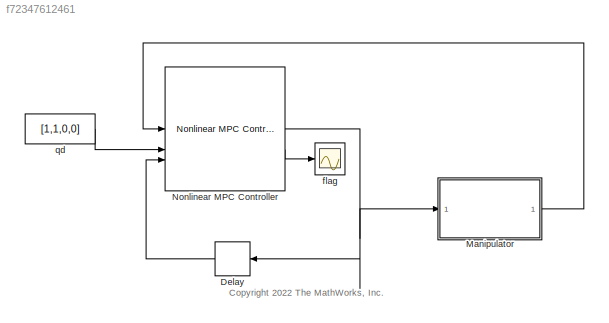
MODEL slx_f72347612461
KIND model
CONFIG AbsTol = auto
CONFIG EnableMultiTasking = off
CONFIG FixedStep = auto
CONFIG MaxStep = auto
CONFIG MinStep = auto
CONFIG RelTol = 1e-3
CONFIG SampleTimeConstraint = Unconstrained
CONFIG SolverName = VariableStepAuto
CONFIG StartTime = 0.0
CONFIG StopTime = 10
BLOCK [Delay] Delay
  DelayLength = 1
  InitialCondition = 0
  InputPortMap = u0
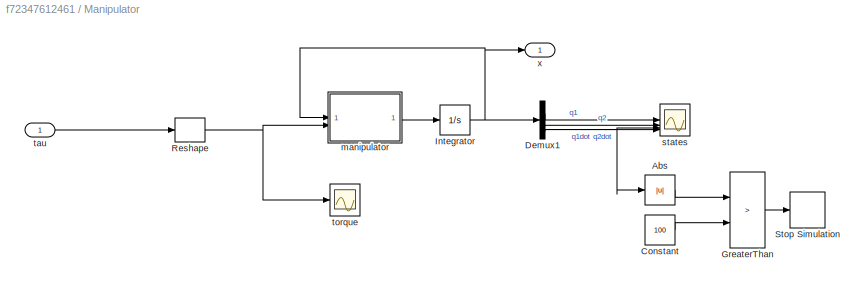
BLOCK [SubSystem] Manipulator
BLOCK [Abs] Manipulator/Abs
  SaturateOnIntegerOverflow = off
BLOCK [Constant] Manipulator/Constant
  Value = 100
BLOCK [Demux] Manipulator/Demux1
BLOCK [RelationalOperator] Manipulator/GreaterThan
  InputSameDT = off
  Operator = >
  OutDataTypeStr = boolean
  RndMeth = Simplest
BLOCK [Integrator] Manipulator/Integrator
  InitialCondition = x0
BLOCK [Reshape] Manipulator/Reshape
  OutputDimensionality = Customize
  OutputDimensions = [2,1]
BLOCK [Stop] Manipulator/Stop Simulation
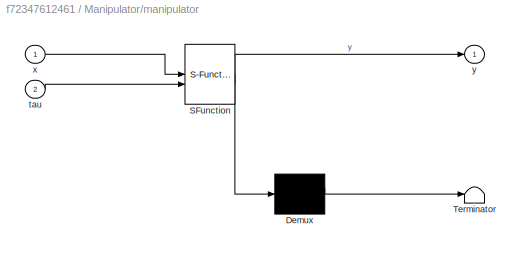
BLOCK [SubSystem] Manipulator/manipulator
  ErrorFcn = Stateflow.Translate.translate
  PermitHierarchicalResolution = ExplicitOnly
  SFBlockType = MATLAB Function
  TreatAsAtomicUnit = on
BLOCK [Demux] Manipulator/manipulator/ Demux 
  Outputs = 1
BLOCK [S-Function] Manipulator/manipulator/ SFunction 
  EnableBusSupport = off
  FunctionName = sf_sfun
  PortCounts = [2 2]
  SFcnIsStateOwnerBlock = off
  SFunctionDeploymentMode = off
  Tag = Stateflow S-Function 2
BLOCK [Terminator] Manipulator/manipulator/ Terminator 
BLOCK [Inport] Manipulator/manipulator/tau
  Port = 2
BLOCK [Inport] Manipulator/manipulator/x
BLOCK [Outport] Manipulator/manipulator/y
BLOCK [Scope] Manipulator/states
  Floating = off
  NumInputPorts = 4
  ScopeSpecificationString = Simulink.scopes.TimeScopeBlockCfg('CurrentConfiguration', extmgr.ConfigurationSet(extmgr.Configuration('Core','General UI',true),extmgr.Configuration('Core','Source UI',true),extmgr.Configuration('Sources','WiredSimulink',true,'DataLoggingSaveFormat','StructureWithTime','DataLoggingDecimation','1','DataLoggingDecimateData',true,'DataLoggingVariableName','ScopeData1'),extmgr.Configuration('Visuals'...<+3699ch>
BLOCK [Inport] Manipulator/tau
BLOCK [Scope] Manipulator/torque
  Floating = off
  NumInputPorts = 1
  ScopeSpecificationString = Simulink.scopes.TimeScopeBlockCfg('CurrentConfiguration', extmgr.ConfigurationSet(extmgr.Configuration('Core','General UI',true),extmgr.Configuration('Core','Source UI',true),extmgr.Configuration('Sources','WiredSimulink',true,'DataLoggingVariableName','ScopeData1'),extmgr.Configuration('Visuals','Time Domain',true,'SerializedDisplays',{struct('MinYLimReal','-160.24507','MaxYLimReal','243.19828','...<+1478ch>
BLOCK [Outport] Manipulator/x
BLOCK [Reference] Nonlinear MPC Controller  REF=mpclib/Nonlinear MPC Controller  (lib defined in mdl_ae329e0e0455)
  SourceBlock = mpclib/Nonlinear MPC Controller
  SourceType = NonlinearMPC
BLOCK [Scope] flag
  Floating = off
  NumInputPorts = 1
  ScopeSpecificationString = Simulink.scopes.TimeScopeBlockCfg('CurrentConfiguration', extmgr.ConfigurationSet(extmgr.Configuration('Core','General UI',true),extmgr.Configuration('Core','Source UI',true),extmgr.Configuration('Sources','WiredSimulink',true,'DataLoggingVariableName','ScopeData4'),extmgr.Configuration('Visuals','Time Domain',true,'SerializedDisplays',{struct('MinYLimReal','-2.375','MaxYLimReal','1.375','YLabelRe...<+1400ch>
BLOCK [Constant] qd
  Value = [1,1,0,0]
  VectorParams1D = off
ANNOTATION (root): <copyright redacted>
LINE Delay:1 -> Nonlinear MPC Controller:3
LINE Manipulator/Abs:1 -> Manipulator/GreaterThan:1
LINE Manipulator/Constant:1 -> Manipulator/GreaterThan:2
LINE Manipulator/Demux1:1 -> Manipulator/states:1
LINE Manipulator/Demux1:2 -> Manipulator/states:2
NET Manipulator/Demux1:3 -> Manipulator/Abs:1, Manipulator/states:3
LINE Manipulator/Demux1:4 -> Manipulator/states:4
LINE Manipulator/GreaterThan:1 -> Manipulator/Stop Simulation:1
NET Manipulator/Integrator:1 -> Manipulator/Demux1:1, Manipulator/manipulator:1, Manipulator/x:1
NET Manipulator/Reshape:1 -> Manipulator/manipulator:2, Manipulator/torque:1
LINE Manipulator/manipulator:1 -> Manipulator/Integrator:1
LINE Manipulator/tau:1 -> Manipulator/Reshape:1
LINE Manipulator:1 -> Nonlinear MPC Controller:1
NET Nonlinear MPC Controller:1 -> Delay:1, Manipulator:1
LINE Nonlinear MPC Controller:2 -> flag:1
LINE qd:1 -> Nonlinear MPC Controller:2
note: NET lines group one-source signal fan-out (src -> all destinations, sorted); 1:1 wires keep LINE
CHART Manipulator/manipulator states=1 transitions=1
  STATE_LABEL 'eML_blk_kernel()'
  STATE_LABEL 'SCRIPT:\nfunction y = fcn(x, tau)\ny = manipulatorStateFcn(x,tau);\n'
CHART  states=0 transitions=0
